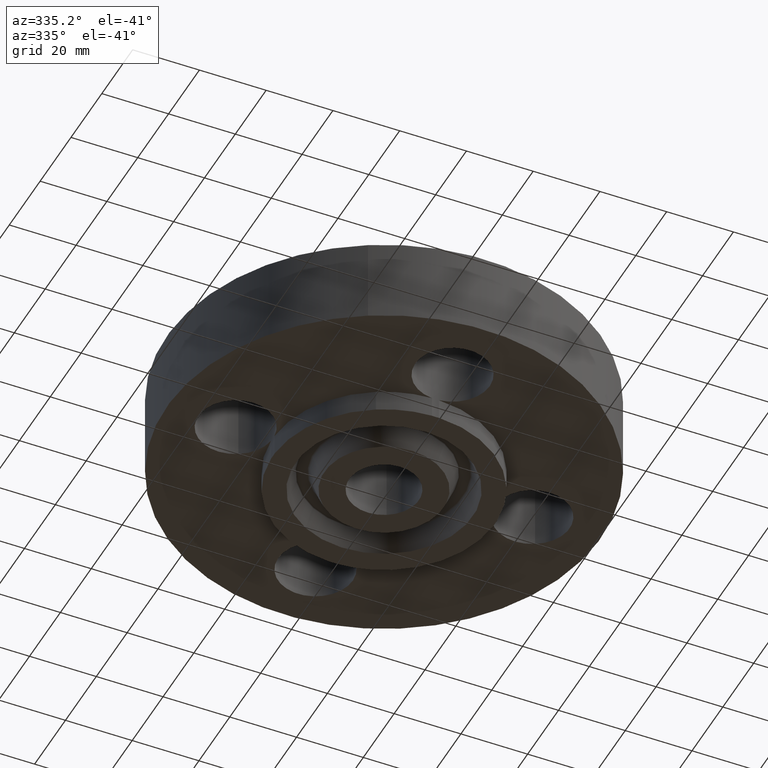
[diagram: clean part render]
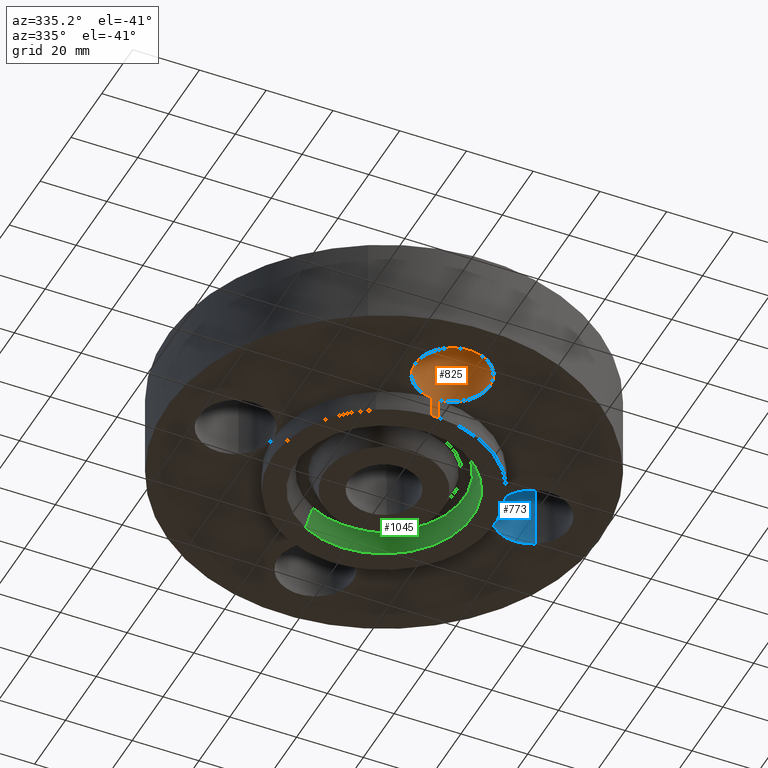
[diagram: same view with three faces highlighted in distinct colors, each labeled with its STEP entity id]
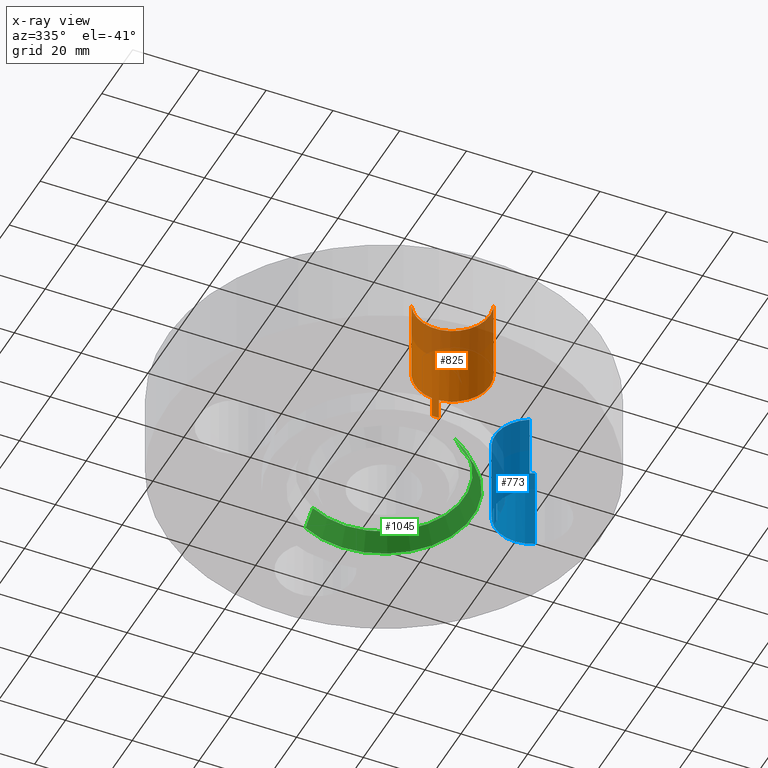
[diagram: x-ray of the same camera — body ghosted, the three highlighted faces saturated]
A machine part, auxiliary view with three faces highlighted in distinct colors.
The next image is the same camera in x-ray (body ghosted, the three faces saturated) — at least one of them is partly hidden behind the body in this view.
Their STEP definitions:

[orange] entity #825 — the highlighted cylindrical surface (partial cylindrical patch) has radius 11.176 mm, axis along (-0, 0, -1).
#684=AXIS2_PLACEMENT_3D('Circle Axis2P3D',#682,#683,$) ;
#698=AXIS2_PLACEMENT_3D('Circle Axis2P3D',#696,#697,$) ;
#777=AXIS2_PLACEMENT_3D('Cylinder Axis2P3D',#774,#775,#776) ;
#807=AXIS2_PLACEMENT_3D('Circle Axis2P3D',#805,#806,$) ;
#812=AXIS2_PLACEMENT_3D('Circle Axis2P3D',#810,#811,$) ;
#554=CARTESIAN_POINT('Vertex',(0.0405576089,-1.31187321429,-0.250000000001)) ;
#568=CARTESIAN_POINT('Vertex',(0.0405576089,-1.31187321429,0.)) ;
#571=CARTESIAN_POINT('Line Origine',(0.0405576089,-1.31187321429,-0.125000000001)) ;
#587=CARTESIAN_POINT('Vertex',(-0.0405576089,-1.31187321429,0.)) ;
#594=CARTESIAN_POINT('Vertex',(-0.0405576089,-1.31187321429,-0.250000000001)) ;
#597=CARTESIAN_POINT('Line Origine',(-0.0405576089,-1.31187321429,-0.125000000001)) ;
#682=CARTESIAN_POINT('Axis2P3D Location',(2.44773580232E-016,-1.75000000001,0.)) ;
#686=CARTESIAN_POINT('Vertex',(-0.386136327233,-1.53905276302,0.)) ;
#693=CARTESIAN_POINT('Vertex',(0.386136327233,-1.96094723699,0.)) ;
#696=CARTESIAN_POINT('Axis2P3D Location',(2.44773580232E-016,-1.75000000001,0.)) ;
#774=CARTESIAN_POINT('Axis2P3D Location',(2.14313189852E-016,-1.75000000001,0.99606299213)) ;
#779=CARTESIAN_POINT('Line Origine',(0.386136327233,-1.96094723699,0.375000000002)) ;
#783=CARTESIAN_POINT('Vertex',(0.386136327233,-1.96094723699,1.)) ;
#786=CARTESIAN_POINT('Line Origine',(-0.386136327233,-1.53905276302,0.375000000002)) ;
#790=CARTESIAN_POINT('Vertex',(-0.386136327233,-1.53905276302,1.)) ;
#805=CARTESIAN_POINT('Axis2P3D Location',(2.14313189852E-016,-1.75000000001,-0.250000000001)) ;
#810=CARTESIAN_POINT('Axis2P3D Location',(2.14313189852E-016,-1.75000000001,1.)) ;
#572=DIRECTION('Vector Direction',(0.,0.,-0.0393700787402)) ;
#598=DIRECTION('Vector Direction',(0.,0.,-0.0393700787402)) ;
#683=DIRECTION('Axis2P3D Direction',(0.,0.,-0.0393700787402)) ;
#697=DIRECTION('Axis2P3D Direction',(0.,0.,-0.0393700787402)) ;
#775=DIRECTION('Axis2P3D Direction',(-0.,0.,-0.0393700787402)) ;
#776=DIRECTION('Axis2P3D XDirection',(-0.0345504945626,0.0188750212049,0.)) ;
#780=DIRECTION('Vector Direction',(0.,0.,-0.0393700787402)) ;
#787=DIRECTION('Vector Direction',(0.,0.,-0.0393700787402)) ;
#806=DIRECTION('Axis2P3D Direction',(-0.,0.,-0.0393700787402)) ;
#811=DIRECTION('Axis2P3D Direction',(-0.,0.,-0.0393700787402)) ;
#573=VECTOR('Line Direction',#572,0.0393700787402) ;
#599=VECTOR('Line Direction',#598,0.0393700787402) ;
#781=VECTOR('Line Direction',#780,0.0393700787402) ;
#788=VECTOR('Line Direction',#787,0.0393700787402) ;
#816=ORIENTED_EDGE('',*,*,#792,.F.) ;
#817=ORIENTED_EDGE('',*,*,#688,.T.) ;
#818=ORIENTED_EDGE('',*,*,#601,.T.) ;
#819=ORIENTED_EDGE('',*,*,#809,.T.) ;
#820=ORIENTED_EDGE('',*,*,#575,.F.) ;
#821=ORIENTED_EDGE('',*,*,#700,.T.) ;
#822=ORIENTED_EDGE('',*,*,#785,.T.) ;
#823=ORIENTED_EDGE('',*,*,#814,.F.) ;
#825=ADVANCED_FACE('PartBody',(#824),#778,.F.) ;
#685=CIRCLE('generated circle',#684,0.440000000002) ;
#699=CIRCLE('generated circle',#698,0.440000000002) ;
#808=CIRCLE('generated circle',#807,0.440000000002) ;
#813=CIRCLE('generated circle',#812,0.440000000002) ;
#778=CYLINDRICAL_SURFACE('generated cylinder',#777,0.440000000002) ;
#575=EDGE_CURVE('',#569,#555,#574,.T.) ;
#601=EDGE_CURVE('',#588,#595,#600,.T.) ;
#688=EDGE_CURVE('',#687,#588,#685,.T.) ;
#700=EDGE_CURVE('',#569,#694,#699,.T.) ;
#785=EDGE_CURVE('',#694,#784,#782,.F.) ;
#792=EDGE_CURVE('',#687,#791,#789,.F.) ;
#809=EDGE_CURVE('',#595,#555,#808,.T.) ;
#814=EDGE_CURVE('',#791,#784,#813,.T.) ;
#815=EDGE_LOOP('',(#816,#817,#818,#819,#820,#821,#822,#823)) ;
#824=FACE_OUTER_BOUND('',#815,.T.) ;
#574=LINE('Line',#571,#573) ;
#600=LINE('Line',#597,#599) ;
#782=LINE('Line',#779,#781) ;
#789=LINE('Line',#786,#788) ;
#555=VERTEX_POINT('',#554) ;
#569=VERTEX_POINT('',#568) ;
#588=VERTEX_POINT('',#587) ;
#595=VERTEX_POINT('',#594) ;
#687=VERTEX_POINT('',#686) ;
#694=VERTEX_POINT('',#693) ;
#784=VERTEX_POINT('',#783) ;
#791=VERTEX_POINT('',#790) ;

[blue] entity #773 — the highlighted cylindrical surface (partial cylindrical patch) has radius 11.176 mm, axis along (0, -0, -1).
#646=AXIS2_PLACEMENT_3D('Circle Axis2P3D',#644,#645,$) ;
#660=AXIS2_PLACEMENT_3D('Circle Axis2P3D',#658,#659,$) ;
#725=AXIS2_PLACEMENT_3D('Cylinder Axis2P3D',#722,#723,#724) ;
#755=AXIS2_PLACEMENT_3D('Circle Axis2P3D',#753,#754,$) ;
#760=AXIS2_PLACEMENT_3D('Circle Axis2P3D',#758,#759,$) ;
#552=CARTESIAN_POINT('Vertex',(1.31187321429,-0.0405576089,-0.250000000001)) ;
#557=CARTESIAN_POINT('Line Origine',(1.31187321429,-0.0405576089,-0.125000000001)) ;
#561=CARTESIAN_POINT('Vertex',(1.31187321429,-0.0405576089,0.)) ;
#613=CARTESIAN_POINT('Vertex',(1.31187321429,0.0405576089,-0.250000000001)) ;
#620=CARTESIAN_POINT('Vertex',(1.31187321429,0.0405576089,0.)) ;
#623=CARTESIAN_POINT('Line Origine',(1.31187321429,0.0405576089,-0.125000000001)) ;
#644=CARTESIAN_POINT('Axis2P3D Location',(1.75000000001,0.,0.)) ;
#648=CARTESIAN_POINT('Vertex',(1.53905276302,-0.386136327233,0.)) ;
#655=CARTESIAN_POINT('Vertex',(1.96094723699,0.386136327233,0.)) ;
#658=CARTESIAN_POINT('Axis2P3D Location',(1.75000000001,0.,0.)) ;
#722=CARTESIAN_POINT('Axis2P3D Location',(1.75000000001,-1.72584639625E-016,0.99606299213)) ;
#727=CARTESIAN_POINT('Line Origine',(1.96094723699,0.386136327233,0.375000000002)) ;
#731=CARTESIAN_POINT('Vertex',(1.96094723699,0.386136327233,1.)) ;
#734=CARTESIAN_POINT('Line Origine',(1.53905276302,-0.386136327233,0.375000000002)) ;
#738=CARTESIAN_POINT('Vertex',(1.53905276302,-0.386136327233,1.)) ;
#753=CARTESIAN_POINT('Axis2P3D Location',(1.75000000001,-1.72584639625E-016,-0.250000000001)) ;
#758=CARTESIAN_POINT('Axis2P3D Location',(1.75000000001,-1.72584639625E-016,1.)) ;
#558=DIRECTION('Vector Direction',(0.,0.,-0.0393700787402)) ;
#624=DIRECTION('Vector Direction',(0.,0.,-0.0393700787402)) ;
#645=DIRECTION('Axis2P3D Direction',(0.,0.,-0.0393700787402)) ;
#659=DIRECTION('Axis2P3D Direction',(0.,0.,-0.0393700787402)) ;
#723=DIRECTION('Axis2P3D Direction',(0.,-0.,-0.0393700787402)) ;
#724=DIRECTION('Axis2P3D XDirection',(-0.0188750212049,-0.0345504945626,0.)) ;
#728=DIRECTION('Vector Direction',(0.,0.,-0.0393700787402)) ;
#735=DIRECTION('Vector Direction',(0.,0.,-0.0393700787402)) ;
#754=DIRECTION('Axis2P3D Direction',(0.,-0.,-0.0393700787402)) ;
#759=DIRECTION('Axis2P3D Direction',(0.,-0.,-0.0393700787402)) ;
#559=VECTOR('Line Direction',#558,0.0393700787402) ;
#625=VECTOR('Line Direction',#624,0.0393700787402) ;
#729=VECTOR('Line Direction',#728,0.0393700787402) ;
#736=VECTOR('Line Direction',#735,0.0393700787402) ;
#764=ORIENTED_EDGE('',*,*,#740,.F.) ;
#765=ORIENTED_EDGE('',*,*,#650,.T.) ;
#766=ORIENTED_EDGE('',*,*,#563,.T.) ;
#767=ORIENTED_EDGE('',*,*,#757,.T.) ;
#768=ORIENTED_EDGE('',*,*,#627,.F.) ;
#769=ORIENTED_EDGE('',*,*,#662,.T.) ;
#770=ORIENTED_EDGE('',*,*,#733,.T.) ;
#771=ORIENTED_EDGE('',*,*,#762,.F.) ;
#773=ADVANCED_FACE('PartBody',(#772),#726,.F.) ;
#647=CIRCLE('generated circle',#646,0.440000000002) ;
#661=CIRCLE('generated circle',#660,0.440000000002) ;
#756=CIRCLE('generated circle',#755,0.440000000002) ;
#761=CIRCLE('generated circle',#760,0.440000000002) ;
#726=CYLINDRICAL_SURFACE('generated cylinder',#725,0.440000000002) ;
#563=EDGE_CURVE('',#562,#553,#560,.T.) ;
#627=EDGE_CURVE('',#621,#614,#626,.T.) ;
#650=EDGE_CURVE('',#649,#562,#647,.T.) ;
#662=EDGE_CURVE('',#621,#656,#661,.T.) ;
#733=EDGE_CURVE('',#656,#732,#730,.F.) ;
#740=EDGE_CURVE('',#649,#739,#737,.F.) ;
#757=EDGE_CURVE('',#553,#614,#756,.T.) ;
#762=EDGE_CURVE('',#739,#732,#761,.T.) ;
#763=EDGE_LOOP('',(#764,#765,#766,#767,#768,#769,#770,#771)) ;
#772=FACE_OUTER_BOUND('',#763,.T.) ;
#560=LINE('Line',#557,#559) ;
#626=LINE('Line',#623,#625) ;
#730=LINE('Line',#727,#729) ;
#737=LINE('Line',#734,#736) ;
#553=VERTEX_POINT('',#552) ;
#562=VERTEX_POINT('',#561) ;
#614=VERTEX_POINT('',#613) ;
#621=VERTEX_POINT('',#620) ;
#649=VERTEX_POINT('',#648) ;
#656=VERTEX_POINT('',#655) ;
#732=VERTEX_POINT('',#731) ;
#739=VERTEX_POINT('',#738) ;

[green] entity #1045 — the highlighted conical surface has half-angle 23 deg.
#906=AXIS2_PLACEMENT_3D('Circle Axis2P3D',#904,#905,$) ;
#980=AXIS2_PLACEMENT_3D('Cone Axis2P3D',#977,#978,#979) ;
#1001=AXIS2_PLACEMENT_3D('Circle Axis2P3D',#999,#1000,$) ;
#899=CARTESIAN_POINT('Vertex',(0.501958538921,-0.918828942303,-0.250000000001)) ;
#901=CARTESIAN_POINT('Vertex',(-0.501958538921,0.918828942303,-0.250000000001)) ;
#904=CARTESIAN_POINT('Axis2P3D Location',(0.,6.99353086378E-017,-0.250000000001)) ;
#946=CARTESIAN_POINT('Vertex',(-0.454926171572,0.832736771348,-0.0188873350169)) ;
#948=CARTESIAN_POINT('Vertex',(0.454926171572,-0.832736771348,-0.0188873350169)) ;
#977=CARTESIAN_POINT('Axis2P3D Location',(0.,0.,-0.0188873350169)) ;
#982=CARTESIAN_POINT('Line Origine',(-0.478442355246,0.875782856826,-0.134443667509)) ;
#987=CARTESIAN_POINT('Line Origine',(0.478442355246,-0.875782856826,-0.134443667509)) ;
#999=CARTESIAN_POINT('Axis2P3D Location',(0.,0.,-0.0188873350169)) ;
#905=DIRECTION('Axis2P3D Direction',(0.,0.,-0.0393700787402)) ;
#978=DIRECTION('Axis2P3D Direction',(-0.,-0.,-0.0393700787402)) ;
#979=DIRECTION('Axis2P3D XDirection',(-0.0188750212049,0.0345504945626,0.)) ;
#983=DIRECTION('Vector Direction',(-0.00737505833565,0.0134999537303,-0.0362403485611)) ;
#988=DIRECTION('Vector Direction',(0.00737505833565,-0.0134999537303,-0.0362403485611)) ;
#1000=DIRECTION('Axis2P3D Direction',(0.,0.,0.0393700787402)) ;
#984=VECTOR('Line Direction',#983,0.0393700787402) ;
#989=VECTOR('Line Direction',#988,0.0393700787402) ;
#1040=ORIENTED_EDGE('',*,*,#908,.T.) ;
#1041=ORIENTED_EDGE('',*,*,#991,.T.) ;
#1042=ORIENTED_EDGE('',*,*,#1003,.T.) ;
#1043=ORIENTED_EDGE('',*,*,#986,.F.) ;
#1045=ADVANCED_FACE('PartBody',(#1044),#981,.F.) ;
#907=CIRCLE('generated circle',#906,1.047) ;
#1002=CIRCLE('generated circle',#1001,0.948898494011) ;
#981=CONICAL_SURFACE('Cone',#980,0.948898494011,0.401425727959) ;
#908=EDGE_CURVE('',#902,#900,#907,.T.) ;
#986=EDGE_CURVE('',#902,#947,#985,.F.) ;
#991=EDGE_CURVE('',#900,#949,#990,.F.) ;
#1003=EDGE_CURVE('',#949,#947,#1002,.T.) ;
#1039=EDGE_LOOP('',(#1040,#1041,#1042,#1043)) ;
#1044=FACE_OUTER_BOUND('',#1039,.T.) ;
#985=LINE('Line',#982,#984) ;
#990=LINE('Line',#987,#989) ;
#900=VERTEX_POINT('',#899) ;
#902=VERTEX_POINT('',#901) ;
#947=VERTEX_POINT('',#946) ;
#949=VERTEX_POINT('',#948) ;